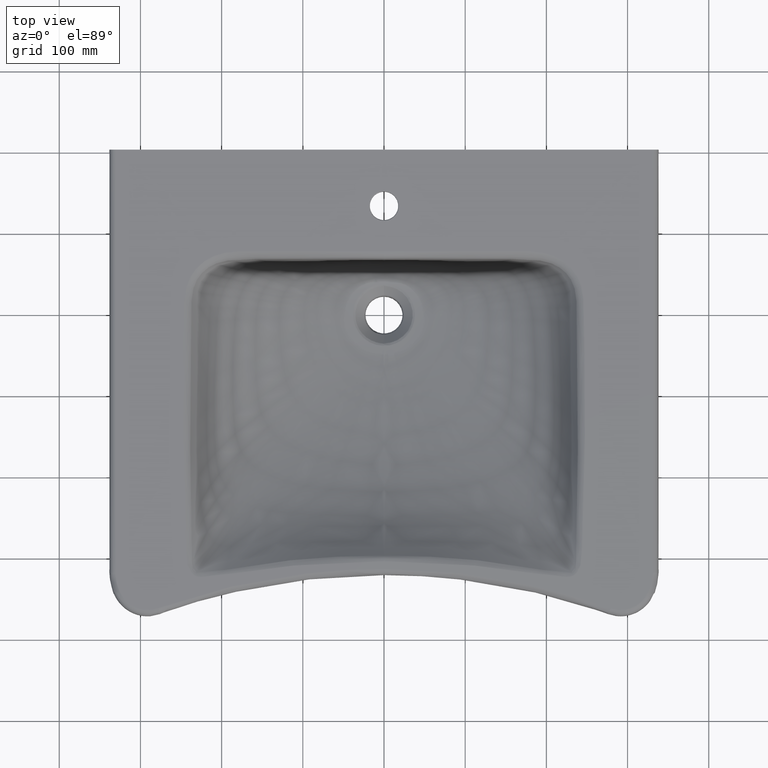
[diagram: clean part render]
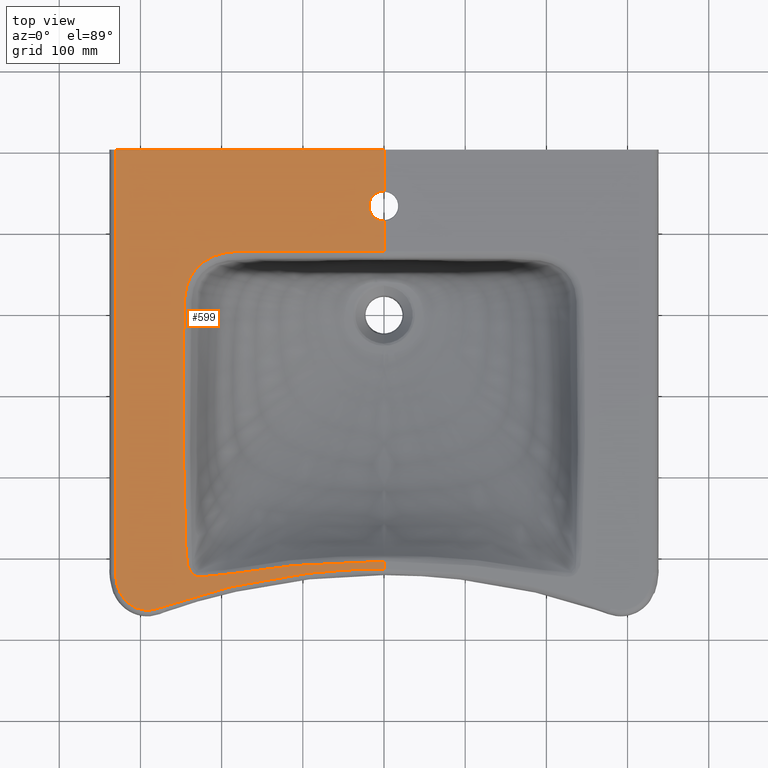
[diagram: same view with one face highlighted and labeled with its STEP entity id]
A machine part, top view. The second image highlights one B-rep face of the part: STEP entity #599.
In plain terms, the highlighted face is a freeform B-spline surface patch.
Its self-contained STEP definition (entity closure, byte-faithful):
#299=B_SPLINE_SURFACE_WITH_KNOTS('',1,1,((#19134,#19135),(#19136,#19137)),
 .UNSPECIFIED.,.F.,.F.,.F.,(2,2),(2,2),(0.,1.),(0.,1.),.UNSPECIFIED.);
#436=B_SPLINE_CURVE_WITH_KNOTS('',3,(#17108,#17109,#17110,#17111,#17112,
#17113,#17114,#17115,#17116,#17117,#17118,#17119,#17120,#17121,#17122,#17123,
#17124,#17125,#17126,#17127,#17128,#17129,#17130,#17131,#17132,#17133,#17134,
#17135,#17136,#17137,#17138,#17139,#17140,#17141,#17142,#17143,#17144,#17145,
#17146,#17147,#17148,#17149,#17150,#17151,#17152,#17153,#17154,#17155,#17156,
#17157,#17158,#17159,#17160,#17161,#17162,#17163,#17164,#17165,#17166,#17167,
#17168,#17169,#17170,#17171,#17172,#17173,#17174,#17175,#17176,#17177),
 .UNSPECIFIED.,.F.,.F.,(4,2,2,2,2,2,2,2,2,2,2,2,2,2,2,2,2,2,2,2,2,2,2,2,
2,2,2,2,2,2,2,2,2,2,4),(0.,0.124999999999999,0.187499999999999,0.218749999999999,
0.249999999999999,0.257812499999999,0.265624999999998,0.269531249999998,
0.273437499999998,0.281249999999998,0.296874999999998,0.312499999999998,
0.343749999999998,0.374999999999998,0.406249999999998,0.437499999999998,
0.499999999999998,0.531249999999998,0.562499999999998,0.593749999999998,
0.624999999999999,0.640624999999999,0.656249999999999,0.671874999999999,
0.687499999999999,0.703124999999999,0.718749999999999,0.734374999999999,
0.749999999999999,0.781249999999999,0.812499999999999,0.843749999999999,
0.874999999999999,0.9375,1.),.UNSPECIFIED.);
#447=B_SPLINE_CURVE_WITH_KNOTS('',3,(#19082,#19083,#19084,#19085,#19086,
#19087,#19088,#19089,#19090,#19091,#19092,#19093,#19094,#19095),
 .UNSPECIFIED.,.F.,.F.,(4,2,2,2,2,2,4),(0.,0.125,0.249999999999999,0.499999999999999,
0.624999999999999,0.75,1.),.UNSPECIFIED.);
#448=B_SPLINE_CURVE_WITH_KNOTS('',3,(#19096,#19097,#19098,#19099,#19100,
#19101,#19102,#19103,#19104,#19105),.UNSPECIFIED.,.F.,.F.,(4,3,3,4),(0.,
0.5,0.540946768764988,1.),.UNSPECIFIED.);
#449=B_SPLINE_CURVE_WITH_KNOTS('',3,(#19107,#19108,#19109,#19110,#19111,
#19112,#19113,#19114,#19115,#19116,#19117,#19118,#19119,#19120,#19121,#19122),
 .UNSPECIFIED.,.F.,.F.,(4,2,2,2,2,2,2,4),(0.,0.249999999999999,0.374999999999999,
0.499999999999999,0.624999999999999,0.749999999999999,0.875,1.),
 .UNSPECIFIED.);
#450=B_SPLINE_CURVE_WITH_KNOTS('',3,(#19124,#19125,#19126,#19127,#19128,
#19129,#19130,#19131,#19132,#19133),.UNSPECIFIED.,.F.,.F.,(4,2,2,2,4),(0.,
0.25,0.5,0.75,1.),.UNSPECIFIED.);
#599=ADVANCED_FACE('',(#828),#299,.T.);
#828=FACE_OUTER_BOUND('',#1033,.T.);
#1033=EDGE_LOOP('',(#1565,#1566,#1567,#1568,#1569,#1570,#1571,#1572,#1573));
#1565=ORIENTED_EDGE('',*,*,#2667,.T.);
#1566=ORIENTED_EDGE('',*,*,#2777,.T.);
#1567=ORIENTED_EDGE('',*,*,#2665,.T.);
#1568=ORIENTED_EDGE('',*,*,#2753,.T.);
#1569=ORIENTED_EDGE('',*,*,#2778,.T.);
#1570=ORIENTED_EDGE('',*,*,#2779,.T.);
#1571=ORIENTED_EDGE('',*,*,#2780,.T.);
#1572=ORIENTED_EDGE('',*,*,#2668,.T.);
#1573=ORIENTED_EDGE('',*,*,#2764,.T.);
#2318=VERTEX_POINT('',#4156);
#2350=VERTEX_POINT('',#4576);
#2351=VERTEX_POINT('',#4577);
#2367=VERTEX_POINT('',#6725);
#2368=VERTEX_POINT('',#6740);
#2369=VERTEX_POINT('',#6743);
#2444=VERTEX_POINT('',#17067);
#2460=VERTEX_POINT('',#19106);
#2461=VERTEX_POINT('',#19123);
#2665=EDGE_CURVE('',#2367,#2318,#3080,.T.);
#2667=EDGE_CURVE('',#2351,#2368,#3081,.T.);
#2668=EDGE_CURVE('',#2369,#2350,#3082,.T.);
#2753=EDGE_CURVE('',#2318,#2444,#3101,.T.);
#2764=EDGE_CURVE('',#2350,#2351,#436,.T.);
#2777=EDGE_CURVE('',#2368,#2367,#447,.T.);
#2778=EDGE_CURVE('',#2444,#2460,#448,.T.);
#2779=EDGE_CURVE('',#2460,#2461,#449,.T.);
#2780=EDGE_CURVE('',#2461,#2369,#450,.T.);
#3080=LINE('',#6724,#3186);
#3081=LINE('',#6741,#3187);
#3082=LINE('',#6742,#3188);
#3101=LINE('',#17068,#3207);
#3186=VECTOR('',#3528,1.);
#3187=VECTOR('',#3529,1.);
#3188=VECTOR('',#3530,1.);
#3207=VECTOR('',#3573,1.);
#3528=DIRECTION('',(0.,0.999999999999993,1.20073682399733E-007));
#3529=DIRECTION('',(0.,0.999999999999993,1.20073682399733E-007));
#3530=DIRECTION('',(0.,0.999999999999993,1.20073682399733E-007));
#3573=DIRECTION('',(-1.,-1.45231443817178E-011,1.99813841464806E-017));
#4156=CARTESIAN_POINT('',(-6.62029066010014E-016,201.490373225669,119.802763488197));
#4576=CARTESIAN_POINT('',(0.,-305.566183641452,119.802702604049));
#4577=CARTESIAN_POINT('',(0.,76.4960760104512,119.802748479671));
#6724=CARTESIAN_POINT('',(0.,-2.03862494463777,119.802739049721));
#6725=CARTESIAN_POINT('',(0.,150.678171273996,119.802757386989));
#6740=CARTESIAN_POINT('',(0.,113.678170485856,119.802752944262));
#6741=CARTESIAN_POINT('',(0.,-2.03862494463777,119.802739049721));
#6742=CARTESIAN_POINT('',(0.,-2.03862494463777,119.802739049721));
#6743=CARTESIAN_POINT('',(0.,-314.983240569112,119.802701473308));
#17067=CARTESIAN_POINT('',(-330.696975599021,201.490373224787,119.802763488197));
#17068=CARTESIAN_POINT('',(-189.866876089154,201.490373226832,119.802763488197));
#17108=CARTESIAN_POINT('',(2.36965680754899E-014,-305.566183641452,119.802702604049));
#17109=CARTESIAN_POINT('',(-36.2546177483886,-305.563749071031,119.802702604341));
#17110=CARTESIAN_POINT('',(-72.4883534804218,-307.275768725629,119.802702398773));
#17111=CARTESIAN_POINT('',(-126.636673713524,-312.235794993082,119.802701803204));
#17112=CARTESIAN_POINT('',(-144.633377134992,-314.404223314637,119.802701542833));
#17113=CARTESIAN_POINT('',(-171.521477941273,-318.453267501455,119.802701056649));
#17114=CARTESIAN_POINT('',(-180.472049915034,-319.884724531871,119.802700884769));
#17115=CARTESIAN_POINT('',(-198.396488495207,-322.590573368544,119.802700559868));
#17116=CARTESIAN_POINT('',(-207.386151822377,-323.877126824751,119.802700405387));
#17117=CARTESIAN_POINT('',(-218.674706528346,-324.664783099308,119.80270031081));
#17118=CARTESIAN_POINT('',(-220.935823930476,-324.768841501961,119.802700298315));
#17119=CARTESIAN_POINT('',(-225.467619499902,-324.826878387711,119.802700291346));
#17120=CARTESIAN_POINT('',(-227.766841684086,-324.875881320948,119.802700285462));
#17121=CARTESIAN_POINT('',(-231.090563211619,-324.201891398211,119.802700366391));
#17122=CARTESIAN_POINT('',(-232.189973387867,-323.838007912654,119.802700410084));
#17123=CARTESIAN_POINT('',(-234.182291407044,-322.783776840001,119.802700536669));
#17124=CARTESIAN_POINT('',(-235.102770219228,-322.088626291635,119.802700620138));
#17125=CARTESIAN_POINT('',(-237.550150431937,-319.74164646741,119.802700901949));
#17126=CARTESIAN_POINT('',(-238.82370093006,-317.820274343247,119.802701132655));
#17127=CARTESIAN_POINT('',(-241.817103130028,-311.78311002471,119.80270185756));
#17128=CARTESIAN_POINT('',(-242.713613355462,-307.273060650487,119.802702399098));
#17129=CARTESIAN_POINT('',(-243.652150542216,-298.417647902403,119.8027034624));
#17130=CARTESIAN_POINT('',(-243.740642564006,-293.959841534863,119.802703997665));
#17131=CARTESIAN_POINT('',(-244.364635319556,-280.614762805175,119.802705600058));
#17132=CARTESIAN_POINT('',(-244.882602237972,-271.724378855051,119.802706667559));
#17133=CARTESIAN_POINT('',(-245.532667220456,-253.923860668182,119.802708804933));
#17134=CARTESIAN_POINT('',(-245.716162528694,-245.0186974577,119.802709874209));
#17135=CARTESIAN_POINT('',(-246.052395292877,-227.208499503226,119.802712012745));
#17136=CARTESIAN_POINT('',(-246.244718343882,-218.304065938658,119.802713081933));
#17137=CARTESIAN_POINT('',(-246.870717503148,-200.501833319317,119.802715219512));
#17138=CARTESIAN_POINT('',(-247.224378027654,-191.600949871958,119.802716288274));
#17139=CARTESIAN_POINT('',(-247.757192078847,-164.895779756461,119.802719494862));
#17140=CARTESIAN_POINT('',(-247.46265144717,-147.08981348548,119.80272163289));
#17141=CARTESIAN_POINT('',(-247.28087691895,-120.381872418928,119.802724839811));
#17142=CARTESIAN_POINT('',(-247.245402127674,-111.479491776115,119.802725908753));
#17143=CARTESIAN_POINT('',(-247.259837952853,-93.6734649388611,119.802728046788));
#17144=CARTESIAN_POINT('',(-247.326870360945,-84.7696959390765,119.802729115896));
#17145=CARTESIAN_POINT('',(-247.398561260666,-66.9629458514606,119.802731254018));
#17146=CARTESIAN_POINT('',(-247.393005838094,-58.0600937865536,119.802732323017));
#17147=CARTESIAN_POINT('',(-246.962985227941,-40.2596813560592,119.802734460378));
#17148=CARTESIAN_POINT('',(-246.560639692724,-31.3618415733776,119.802735528774));
#17149=CARTESIAN_POINT('',(-246.064545535387,-18.0137249095565,119.802737131532));
#17150=CARTESIAN_POINT('',(-245.922587180879,-13.5640074241979,119.802737665825));
#17151=CARTESIAN_POINT('',(-245.786503713474,-4.66313569410369,119.802738734586));
#17152=CARTESIAN_POINT('',(-245.835923353321,-0.211532124591669,119.802739269106));
#17153=CARTESIAN_POINT('',(-245.945233458362,8.69177910677469,119.80274033816));
#17154=CARTESIAN_POINT('',(-245.958809444854,13.145618893873,119.802740872949));
#17155=CARTESIAN_POINT('',(-245.358031733233,22.0365098048113,119.802741940511));
#17156=CARTESIAN_POINT('',(-244.746965984974,26.416764584998,119.802742466464));
#17157=CARTESIAN_POINT('',(-242.644513947788,34.9925526810273,119.80274349619));
#17158=CARTESIAN_POINT('',(-241.134098290562,39.245372110644,119.802744006842));
#17159=CARTESIAN_POINT('',(-237.221263549401,47.1593369041118,119.802744957101));
#17160=CARTESIAN_POINT('',(-234.822231801637,50.8336231565036,119.802745398286));
#17161=CARTESIAN_POINT('',(-229.135477152571,57.6145919512238,119.802746212502));
#17162=CARTESIAN_POINT('',(-225.855123376882,60.7041860894314,119.802746583481));
#17163=CARTESIAN_POINT('',(-218.772240958714,65.9732452981909,119.802747216156));
#17164=CARTESIAN_POINT('',(-214.874887088916,68.219778325525,119.802747485906));
#17165=CARTESIAN_POINT('',(-202.633480332927,73.4645586491339,119.802748115666));
#17166=CARTESIAN_POINT('',(-193.756432673633,75.0113668124058,119.802748301397));
#17167=CARTESIAN_POINT('',(-176.188169101622,76.7314959705727,119.802748507939));
#17168=CARTESIAN_POINT('',(-167.384538039858,76.9145310797325,119.802748529917));
#17169=CARTESIAN_POINT('',(-149.763307869826,76.7956202537593,119.802748515639));
#17170=CARTESIAN_POINT('',(-140.947267155671,76.5477829303217,119.80274848588));
#17171=CARTESIAN_POINT('',(-123.324653841085,76.3808482887036,119.802748465835));
#17172=CARTESIAN_POINT('',(-114.516527904274,76.4169259667814,119.802748470168));
#17173=CARTESIAN_POINT('',(-88.0899416231039,76.5975158026182,119.802748491852));
#17174=CARTESIAN_POINT('',(-70.4726243857429,76.7985914747476,119.802748515995));
#17175=CARTESIAN_POINT('',(-35.2358110426665,76.7687575721526,119.802748512413));
#17176=CARTESIAN_POINT('',(-17.6179794440407,76.6089479185088,119.802748493224));
#17177=CARTESIAN_POINT('',(-3.64212200852218E-013,76.4960760104512,119.802748479671));
#19082=CARTESIAN_POINT('',(1.01347761342146E-014,113.678170485856,119.802752944262));
#19083=CARTESIAN_POINT('',(-2.44402849137501,113.678400885077,119.80275294429));
#19084=CARTESIAN_POINT('',(-4.84219571358165,114.159674837663,119.802753002078));
#19085=CARTESIAN_POINT('',(-9.3222770913328,116.016717286198,119.80275322506));
#19086=CARTESIAN_POINT('',(-11.3741570489432,117.390898788757,119.802753390063));
#19087=CARTESIAN_POINT('',(-16.4934294088473,122.510836002096,119.802754004833));
#19088=CARTESIAN_POINT('',(-18.4949963337299,127.340521567918,119.802754584751));
#19089=CARTESIAN_POINT('',(-18.4998802298491,134.57827036409,119.802755453814));
#19090=CARTESIAN_POINT('',(-18.0216536058551,137.003004199524,119.802755744961));
#19091=CARTESIAN_POINT('',(-16.1710167206108,141.482131783462,119.802756282786));
#19092=CARTESIAN_POINT('',(-14.814970458895,143.521705443047,119.802756527685));
#19093=CARTESIAN_POINT('',(-9.63986943923209,148.704890227295,119.80275715005));
#19094=CARTESIAN_POINT('',(-4.88805698275006,150.677710475553,119.802757386933));
#19095=CARTESIAN_POINT('',(8.93389868802639E-015,150.678171273996,119.802757386989));
#19096=CARTESIAN_POINT('',(-330.696975599021,201.490373224787,119.802763488197));
#19097=CARTESIAN_POINT('',(-330.696973479329,114.619270416332,119.802753057264));
#19098=CARTESIAN_POINT('',(-330.696971359637,27.7481676078782,119.80274262633));
#19099=CARTESIAN_POINT('',(-330.696969239945,-59.1229352005761,119.802732195397));
#19100=CARTESIAN_POINT('',(-330.696969066356,-66.2371171186905,119.802731341171));
#19101=CARTESIAN_POINT('',(-330.696968892766,-73.3512990368049,119.802730486945));
#19102=CARTESIAN_POINT('',(-330.696968719177,-80.4654809549194,119.802729632719));
#19103=CARTESIAN_POINT('',(-330.696966773074,-160.222401845259,119.802720056012));
#19104=CARTESIAN_POINT('',(-330.69696482697,-239.979322735599,119.802710479305));
#19105=CARTESIAN_POINT('',(-330.696962880865,-319.736243625939,119.802700902598));
#19106=CARTESIAN_POINT('',(-330.696962880865,-319.736243625939,119.802700902598));
#19107=CARTESIAN_POINT('',(-330.696962880865,-319.736243625939,119.802700902598));
#19108=CARTESIAN_POINT('',(-330.696962716581,-326.46906485984,119.802700094163));
#19109=CARTESIAN_POINT('',(-329.656988622052,-333.002144701737,119.802699309712));
#19110=CARTESIAN_POINT('',(-326.112870155905,-342.42067957928,119.802698178794));
#19111=CARTESIAN_POINT('',(-324.600516040201,-345.448762491632,119.802697815201));
#19112=CARTESIAN_POINT('',(-320.95194571956,-351.035540540294,119.802697144376));
#19113=CARTESIAN_POINT('',(-318.764484445745,-353.659979580734,119.80269682925));
#19114=CARTESIAN_POINT('',(-313.865299351505,-358.19669849357,119.802696284509));
#19115=CARTESIAN_POINT('',(-311.157618759114,-360.129800246635,119.802696052395));
#19116=CARTESIAN_POINT('',(-305.169815996167,-363.25239918713,119.802695677453));
#19117=CARTESIAN_POINT('',(-302.001820649407,-364.376197614606,119.802695542514));
#19118=CARTESIAN_POINT('',(-295.445607639671,-365.709787400044,119.802695382385));
#19119=CARTESIAN_POINT('',(-292.029465383129,-365.91059997052,119.802695358273));
#19120=CARTESIAN_POINT('',(-285.3638740564,-365.386635317037,119.802695421187));
#19121=CARTESIAN_POINT('',(-282.033001097484,-364.662277466889,119.802695508163));
#19122=CARTESIAN_POINT('',(-278.8426645675,-363.525527890738,119.802695644657));
#19123=CARTESIAN_POINT('',(-278.842664567501,-363.525527890738,119.802695644657));
#19124=CARTESIAN_POINT('',(-278.842664567501,-363.525527890738,119.802695644657));
#19125=CARTESIAN_POINT('',(-256.484108670119,-355.558945462576,119.802696601234));
#19126=CARTESIAN_POINT('',(-233.856044710518,-348.559911770157,119.802697441634));
#19127=CARTESIAN_POINT('',(-188.063166284156,-336.488808166417,119.802698891055));
#19128=CARTESIAN_POINT('',(-164.851342187108,-331.408172171538,119.802699501106));
#19129=CARTESIAN_POINT('',(-118.163310395294,-323.252263713962,119.802700480416));
#19130=CARTESIAN_POINT('',(-94.6891557606818,-320.171823289429,119.802700850296));
#19131=CARTESIAN_POINT('',(-47.4774622805262,-316.029783170201,119.802701347646));
#19132=CARTESIAN_POINT('',(-23.7367898428264,-314.976153908421,119.802701474159));
#19133=CARTESIAN_POINT('',(2.40050143307396E-014,-314.983240569112,119.802701473308));
#19134=CARTESIAN_POINT('',(-509.260352445336,-431.099760686789,119.80268753077));
#19135=CARTESIAN_POINT('',(-509.260352445336,427.022510797513,119.802790568671));
#19136=CARTESIAN_POINT('',(129.52660027294,-431.099760686789,119.80268753077));
#19137=CARTESIAN_POINT('',(129.52660027294,427.022510797513,119.802790568671));